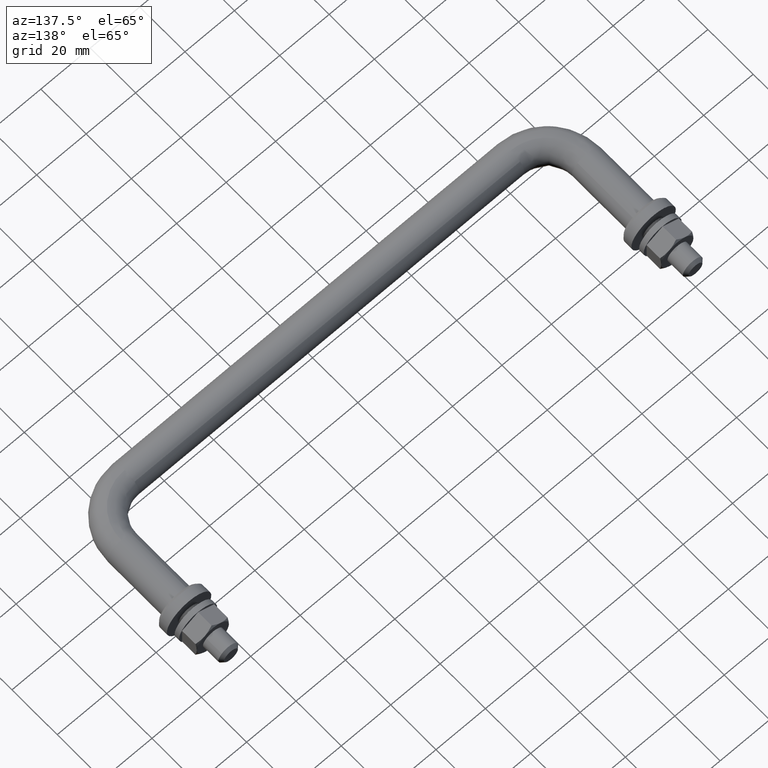
[diagram: clean part render]
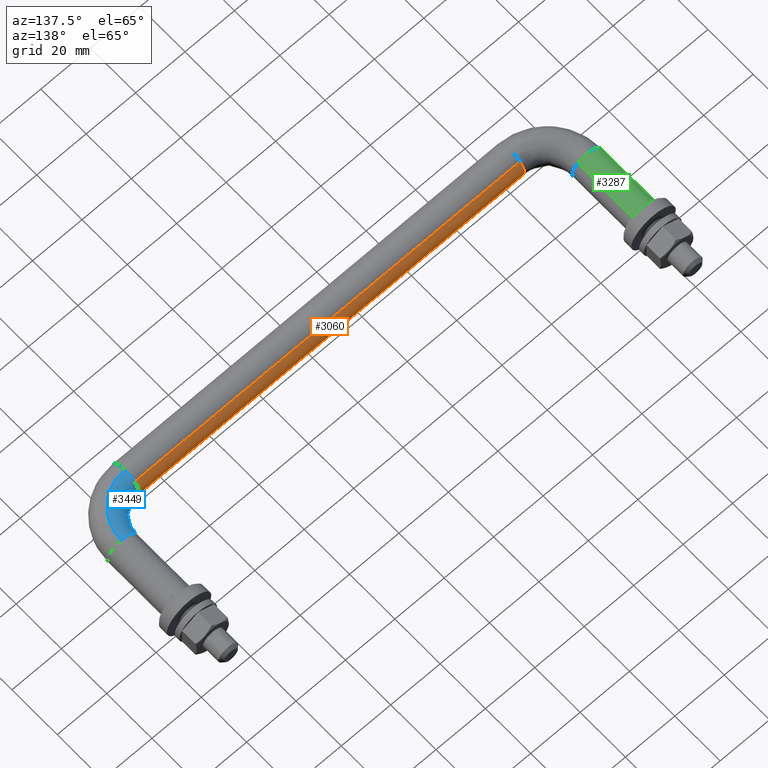
[diagram: same view with three faces highlighted in distinct colors, each labeled with its STEP entity id]
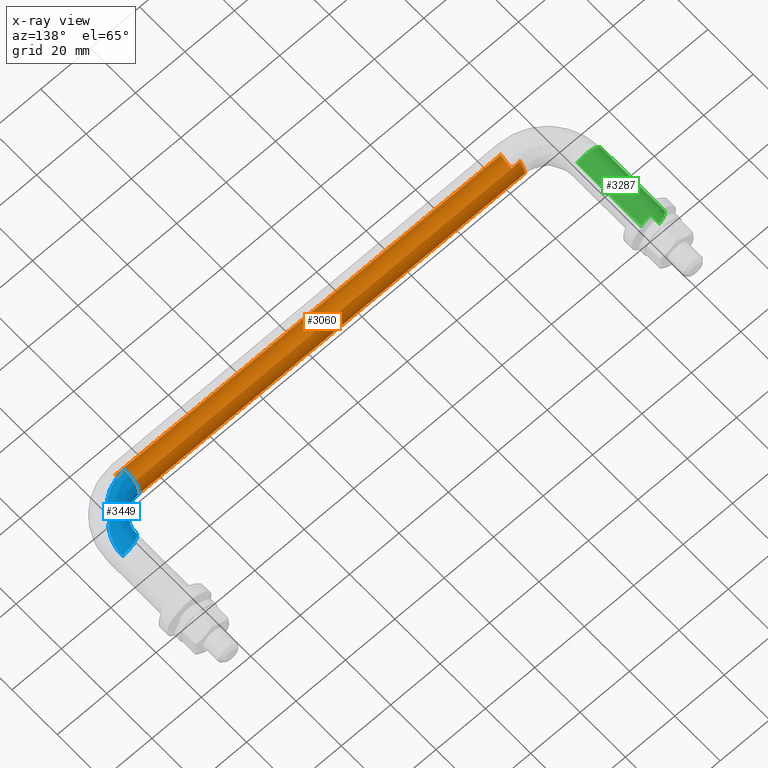
[diagram: x-ray of the same camera — body ghosted, the three highlighted faces saturated]
A machine part, auxiliary view with three faces highlighted in distinct colors.
The next image is the same camera in x-ray (body ghosted, the three faces saturated) — at least one of them is partly hidden behind the body in this view.
Their STEP definitions:

[orange] entity #3060 — the highlighted face is a freeform B-spline surface patch.
#2928=CARTESIAN_POINT('',(12.099999999496248,-48.467994806516181,-4.004625127142923));
#2929=CARTESIAN_POINT('',(12.099999999496248,-48.236023575800246,-4.263437430715380));
#2930=CARTESIAN_POINT('',(12.099999999496250,-47.975720289294422,-4.493734324734011));
#2931=CARTESIAN_POINT('',(12.099999999496250,-43.481985964560408,-8.469454614028436));
#2932=CARTESIAN_POINT('',(12.099999999496250,-39.506265675265993,-3.975720289294424));
#2933=CARTESIAN_POINT('',(12.099999999496250,-35.530545385971564,0.518014035439587));
#2934=CARTESIAN_POINT('',(12.099999999496250,-40.024279710705578,4.493734324734011));
#2935=CARTESIAN_POINT('',(175.997500001134800,-48.467994806516145,-4.004625127142923));
#2936=CARTESIAN_POINT('',(175.997500001134740,-48.236023575800203,-4.263437430715380));
#2937=CARTESIAN_POINT('',(175.997500001134800,-47.975720289294401,-4.493734324734011));
#2938=CARTESIAN_POINT('',(175.997500001134740,-43.481985964560380,-8.469454614028436));
#2939=CARTESIAN_POINT('',(175.997500001134800,-39.506265675265972,-3.975720289294424));
#2940=CARTESIAN_POINT('',(175.997500001134740,-35.530545385971550,0.518014035439587));
#2941=CARTESIAN_POINT('',(175.997500001134800,-40.024279710705557,4.493734324734011));
#2949=(BOUNDED_SURFACE()B_SPLINE_SURFACE(2,1,((#2928,#2935),(#2929,#2936),(#2930,#2937),(#2931,#2938),(#2932,#2939),(#2933,#2940),(#2934,#2941)),.UNSPECIFIED.,.F.,.F.,.U.)B_SPLINE_SURFACE_WITH_KNOTS((3,2,2,3),(2,2),(0.0,0.795290039756343,10.736415536710620,20.677541033664909),(0.0,163.897500001638600),.UNSPECIFIED.)GEOMETRIC_REPRESENTATION_ITEM()RATIONAL_B_SPLINE_SURFACE(((0.956886118190660,0.956886118190660),(0.976568542494924,0.976568542494924),(1.0,1.0),(0.707106781186548,0.707106781186548),(1.0,1.0),(0.707106781186548,0.707106781186548),(1.0,1.0)))REPRESENTATION_ITEM('')SURFACE());
#2950=CARTESIAN_POINT('',(172.000000000030700,-43.924603760731657,-5.999526265223295));
#2951=VERTEX_POINT('',#2950);
#2952=CARTESIAN_POINT('',(172.0,-48.467998580238500,-4.004620916760366));
#2953=VERTEX_POINT('',#2952);
#2954=CARTESIAN_POINT('',(172.000000000030700,-43.924603760731664,-5.999526265223295));
#2955=CARTESIAN_POINT('',(171.999999999999970,-43.962300392080444,-6.0));
#2956=CARTESIAN_POINT('',(172.0,-44.0,-6.0));
#2957=CARTESIAN_POINT('',(172.000000000000090,-46.679560945335538,-6.0));
#2958=CARTESIAN_POINT('',(171.999999999999970,-48.467998580238500,-4.004620916760366));
#2966=(BOUNDED_CURVE()B_SPLINE_CURVE(2,(#2954,#2955,#2956,#2957,#2958),.UNSPECIFIED.,.F.,.U.)B_SPLINE_CURVE_WITH_KNOTS((3,2,3),(0.247784295923591,0.250000000000000,0.383246101980459),.UNSPECIFIED.)CURVE()GEOMETRIC_REPRESENTATION_ITEM()RATIONAL_B_SPLINE_CURVE((0.994854295648300,0.997404141204490,1.0,0.843892481186391,0.854190709346819))REPRESENTATION_ITEM(''));
#2967=EDGE_CURVE('',#2951,#2953,#2966,.T.);
#2968=ORIENTED_EDGE('',*,*,#2967,.T.);
#2969=CARTESIAN_POINT('',(16.0,-48.467998533679001,-4.004620968707411));
#2970=VERTEX_POINT('',#2969);
#2971=CARTESIAN_POINT('',(16.0,-48.467998533679001,-4.004620968707411));
#2972=CARTESIAN_POINT('',(172.0,-48.467998580238500,-4.004620916760366));
#2973=QUASI_UNIFORM_CURVE('',1,(#2971,#2972),.UNSPECIFIED.,.F.,.U.);
#2974=EDGE_CURVE('',#2970,#2953,#2973,.T.);
#2975=ORIENTED_EDGE('',*,*,#2974,.F.);
#2976=CARTESIAN_POINT('',(15.999999999610340,-43.581600490287009,-5.985394043024395));
#2977=VERTEX_POINT('',#2976);
#2978=CARTESIAN_POINT('',(15.999999999610345,-43.581600490287016,-5.985394043024395));
#2979=CARTESIAN_POINT('',(16.0,-43.790545304490436,-5.999999999999999));
#2980=CARTESIAN_POINT('',(16.0,-44.0,-6.0));
#2981=CARTESIAN_POINT('',(16.0,-46.679560903499613,-6.0));
#2982=CARTESIAN_POINT('',(16.000000000000004,-48.467998533679001,-4.004620968707411));
#2990=(BOUNDED_CURVE()B_SPLINE_CURVE(2,(#2978,#2979,#2980,#2981,#2982),.UNSPECIFIED.,.F.,.U.)B_SPLINE_CURVE_WITH_KNOTS((3,2,3),(0.237833686520174,0.250000000000000,0.383246100224852),.UNSPECIFIED.)CURVE()GEOMETRIC_REPRESENTATION_ITEM()RATIONAL_B_SPLINE_CURVE((0.972879876355423,0.985746277135201,1.0,0.843892483243213,0.854190709075447))REPRESENTATION_ITEM(''));
#2991=EDGE_CURVE('',#2977,#2970,#2990,.T.);
#2992=ORIENTED_EDGE('',*,*,#2991,.F.);
#2993=CARTESIAN_POINT('',(16.0,-38.0,0.0));
#2994=VERTEX_POINT('',#2993);
#2995=CARTESIAN_POINT('',(16.0,-38.0,0.0));
#2996=CARTESIAN_POINT('',(15.999999999999998,-37.999999999999993,-5.595221083111795));
#2997=CARTESIAN_POINT('',(15.999999999610345,-43.581600490287016,-5.985394043024395));
#3005=(BOUNDED_CURVE()B_SPLINE_CURVE(2,(#2995,#2996,#2997),.UNSPECIFIED.,.F.,.U.)B_SPLINE_CURVE_WITH_KNOTS((3,3),(0.0,0.237833686520174),.UNSPECIFIED.)CURVE()GEOMETRIC_REPRESENTATION_ITEM()RATIONAL_B_SPLINE_CURVE((1.0,0.721360504051347,0.972879876355423))REPRESENTATION_ITEM(''));
#3006=EDGE_CURVE('',#2994,#2977,#3005,.T.);
#3007=ORIENTED_EDGE('',*,*,#3006,.F.);
#3008=CARTESIAN_POINT('',(16.0,-40.024283299106493,4.493737499477844));
#3009=VERTEX_POINT('',#3008);
#3010=CARTESIAN_POINT('',(16.0,-40.024283299106486,4.493737499477844));
#3011=CARTESIAN_POINT('',(16.000000000000004,-37.999999999999993,2.702805803863420));
#3012=CARTESIAN_POINT('',(16.0,-38.0,0.0));
#3020=(BOUNDED_CURVE()B_SPLINE_CURVE(2,(#3010,#3011,#3012),.UNSPECIFIED.,.F.,.U.)B_SPLINE_CURVE_WITH_KNOTS((3,3),(0.865779767457664,1.0),.UNSPECIFIED.)CURVE()GEOMETRIC_REPRESENTATION_ITEM()RATIONAL_B_SPLINE_CURVE((0.854350179069043,0.842751216243140,1.0))REPRESENTATION_ITEM(''));
#3021=EDGE_CURVE('',#3009,#2994,#3020,.T.);
#3022=ORIENTED_EDGE('',*,*,#3021,.F.);
#3023=CARTESIAN_POINT('',(172.0,-40.024283343943772,4.493737539146402));
#3024=VERTEX_POINT('',#3023);
#3025=CARTESIAN_POINT('',(16.0,-40.024283299106493,4.493737499477844));
#3026=CARTESIAN_POINT('',(172.0,-40.024283343943772,4.493737539146402));
#3027=QUASI_UNIFORM_CURVE('',1,(#3025,#3026),.UNSPECIFIED.,.F.,.U.);
#3028=EDGE_CURVE('',#3009,#3024,#3027,.T.);
#3029=ORIENTED_EDGE('',*,*,#3028,.T.);
#3030=CARTESIAN_POINT('',(172.0,-38.0,0.0));
#3031=VERTEX_POINT('',#3030);
#3032=CARTESIAN_POINT('',(171.999999999999970,-40.024283343943765,4.493737539146402));
#3033=CARTESIAN_POINT('',(172.000000000000030,-37.999999999999993,2.702805839870650));
#3034=CARTESIAN_POINT('',(172.0,-38.0,0.0));
#3042=(BOUNDED_CURVE()B_SPLINE_CURVE(2,(#3032,#3033,#3034),.UNSPECIFIED.,.F.,.U.)B_SPLINE_CURVE_WITH_KNOTS((3,3),(0.865779765950736,1.0),.UNSPECIFIED.)CURVE()GEOMETRIC_REPRESENTATION_ITEM()RATIONAL_B_SPLINE_CURVE((0.854350179329492,0.842751214477665,1.0))REPRESENTATION_ITEM(''));
#3043=EDGE_CURVE('',#3024,#3031,#3042,.T.);
#3044=ORIENTED_EDGE('',*,*,#3043,.T.);
#3045=CARTESIAN_POINT('',(172.0,-38.0,0.0));
#3046=CARTESIAN_POINT('',(171.999999999999940,-37.999999999999993,-5.925071579506664));
#3047=CARTESIAN_POINT('',(172.000000000030750,-43.924603760731657,-5.999526265223295));
#3055=(BOUNDED_CURVE()B_SPLINE_CURVE(2,(#3045,#3046,#3047),.UNSPECIFIED.,.F.,.U.)B_SPLINE_CURVE_WITH_KNOTS((3,3),(0.0,0.247784295923591),.UNSPECIFIED.)CURVE()GEOMETRIC_REPRESENTATION_ITEM()RATIONAL_B_SPLINE_CURVE((1.0,0.709702639982057,0.994854295648301))REPRESENTATION_ITEM(''));
#3056=EDGE_CURVE('',#3031,#2951,#3055,.T.);
#3057=ORIENTED_EDGE('',*,*,#3056,.T.);
#3058=EDGE_LOOP('',(#2968,#2975,#2992,#3007,#3022,#3029,#3044,#3057));
#3059=FACE_OUTER_BOUND('',#3058,.T.);
#3060=ADVANCED_FACE('',(#3059),#2949,.T.);

[blue] entity #3449 — the highlighted face is a freeform B-spline surface patch.
#2734=CARTESIAN_POINT('',(187.924611933301410,-27.999977257682200,-5.999526367917516));
#2735=VERTEX_POINT('',#2734);
#2753=CARTESIAN_POINT('',(182.0,-28.0,0.0));
#2754=VERTEX_POINT('',#2753);
#2755=CARTESIAN_POINT('',(182.0,-28.0,0.0));
#2756=CARTESIAN_POINT('',(182.000000000000030,-27.999988628841098,-5.925079651262719));
#2757=CARTESIAN_POINT('',(187.924611933301410,-27.999977257682197,-5.999526367917516));
#2765=(BOUNDED_CURVE()B_SPLINE_CURVE(2,(#2755,#2756,#2757),.UNSPECIFIED.,.F.,.U.)B_SPLINE_CURVE_WITH_KNOTS((3,3),(0.0,0.247784535489267),.UNSPECIFIED.)CURVE()GEOMETRIC_REPRESENTATION_ITEM()RATIONAL_B_SPLINE_CURVE((1.0,0.709702359313410,0.994854847036074))REPRESENTATION_ITEM(''));
#2766=EDGE_CURVE('',#2754,#2735,#2765,.T.);
#2768=CARTESIAN_POINT('',(184.264912180171190,-28.0,4.695648941111987));
#2769=VERTEX_POINT('',#2768);
#2770=CARTESIAN_POINT('',(184.264912180171190,-28.0,4.695648941111987));
#2771=CARTESIAN_POINT('',(182.000000000000030,-27.999999999999996,2.894056444900479));
#2772=CARTESIAN_POINT('',(182.0,-28.0,0.0));
#2780=(BOUNDED_CURVE()B_SPLINE_CURVE(2,(#2770,#2771,#2772),.UNSPECIFIED.,.F.,.U.)B_SPLINE_CURVE_WITH_KNOTS((3,3),(0.857863877391648,1.0),.UNSPECIFIED.)CURVE()GEOMETRIC_REPRESENTATION_ITEM()RATIONAL_B_SPLINE_CURVE((0.856305618644005,0.833477174158305,1.0))REPRESENTATION_ITEM(''));
#2781=EDGE_CURVE('',#2769,#2754,#2780,.T.);
#2895=CARTESIAN_POINT('',(188.418399515030300,-28.000000001144201,5.985394042652700));
#2896=VERTEX_POINT('',#2895);
#2897=CARTESIAN_POINT('',(188.418399515030250,-28.000000001144205,5.985394042652700));
#2898=CARTESIAN_POINT('',(188.209454700846320,-27.999999999999993,6.0));
#2899=CARTESIAN_POINT('',(188.0,-28.0,6.0));
#2900=CARTESIAN_POINT('',(185.904706199466230,-28.000000000000004,6.000000000000001));
#2901=CARTESIAN_POINT('',(184.264912180171140,-28.0,4.695648941111987));
#2909=(BOUNDED_CURVE()B_SPLINE_CURVE(2,(#2897,#2898,#2899,#2900,#2901),.UNSPECIFIED.,.F.,.U.)B_SPLINE_CURVE_WITH_KNOTS((3,2,3),(0.737833686214604,0.750000000000000,0.857863877391649),.UNSPECIFIED.)CURVE()GEOMETRIC_REPRESENTATION_ITEM()RATIONAL_B_SPLINE_CURVE((0.972879875709116,0.985746276777203,1.0,0.873629607028242,0.856305618644005))REPRESENTATION_ITEM(''));
#2910=EDGE_CURVE('',#2896,#2769,#2909,.T.);
#2950=CARTESIAN_POINT('',(172.000000000030700,-43.924603760731657,-5.999526265223295));
#2951=VERTEX_POINT('',#2950);
#3023=CARTESIAN_POINT('',(172.0,-40.024283343943772,4.493737539146402));
#3024=VERTEX_POINT('',#3023);
#3030=CARTESIAN_POINT('',(172.0,-38.0,0.0));
#3031=VERTEX_POINT('',#3030);
#3032=CARTESIAN_POINT('',(171.999999999999970,-40.024283343943765,4.493737539146402));
#3033=CARTESIAN_POINT('',(172.000000000000030,-37.999999999999993,2.702805839870650));
#3034=CARTESIAN_POINT('',(172.0,-38.0,0.0));
#3042=(BOUNDED_CURVE()B_SPLINE_CURVE(2,(#3032,#3033,#3034),.UNSPECIFIED.,.F.,.U.)B_SPLINE_CURVE_WITH_KNOTS((3,3),(0.865779765950736,1.0),.UNSPECIFIED.)CURVE()GEOMETRIC_REPRESENTATION_ITEM()RATIONAL_B_SPLINE_CURVE((0.854350179329492,0.842751214477665,1.0))REPRESENTATION_ITEM(''));
#3043=EDGE_CURVE('',#3024,#3031,#3042,.T.);
#3045=CARTESIAN_POINT('',(172.0,-38.0,0.0));
#3046=CARTESIAN_POINT('',(171.999999999999940,-37.999999999999993,-5.925071579506664));
#3047=CARTESIAN_POINT('',(172.000000000030750,-43.924603760731657,-5.999526265223295));
#3055=(BOUNDED_CURVE()B_SPLINE_CURVE(2,(#3045,#3046,#3047),.UNSPECIFIED.,.F.,.U.)B_SPLINE_CURVE_WITH_KNOTS((3,3),(0.0,0.247784295923591),.UNSPECIFIED.)CURVE()GEOMETRIC_REPRESENTATION_ITEM()RATIONAL_B_SPLINE_CURVE((1.0,0.709702639982057,0.994854295648301))REPRESENTATION_ITEM(''));
#3056=EDGE_CURVE('',#3031,#2951,#3055,.T.);
#3094=CARTESIAN_POINT('',(172.000000001094800,-44.418399514859161,5.985394042664661));
#3095=VERTEX_POINT('',#3094);
#3109=CARTESIAN_POINT('',(172.000000001094860,-44.418399514859168,5.985394042664661));
#3110=CARTESIAN_POINT('',(172.000000000000030,-44.209454700674584,6.000000000000001));
#3111=CARTESIAN_POINT('',(172.0,-44.0,6.0));
#3112=CARTESIAN_POINT('',(172.000000000000030,-41.726806121522053,6.000000000000001));
#3113=CARTESIAN_POINT('',(171.999999999999970,-40.024283343943765,4.493737539146402));
#3121=(BOUNDED_CURVE()B_SPLINE_CURVE(2,(#3109,#3110,#3111,#3112,#3113),.UNSPECIFIED.,.F.,.U.)B_SPLINE_CURVE_WITH_KNOTS((3,2,3),(0.737833686224437,0.750000000000000,0.865779765950736),.UNSPECIFIED.)CURVE()GEOMETRIC_REPRESENTATION_ITEM()RATIONAL_B_SPLINE_CURVE((0.972879875729914,0.985746276788723,1.0,0.864355566708882,0.854350179329492))REPRESENTATION_ITEM(''));
#3122=EDGE_CURVE('',#3095,#3024,#3121,.T.);
#3386=CARTESIAN_POINT('',(170.858311015844380,-44.378656167966355,5.985394066133807));
#3387=CARTESIAN_POINT('',(189.691463637596770,-45.691438038754328,5.985394066133804));
#3388=CARTESIAN_POINT('',(188.378654515969630,-26.858287316566017,5.985394066133806));
#3389=CARTESIAN_POINT('',(170.870222679992420,-44.207771580152766,5.997368459328783));
#3390=CARTESIAN_POINT('',(189.506882043079800,-45.506856711319521,5.997368459328781));
#3391=CARTESIAN_POINT('',(188.207769945391850,-26.870199227977380,5.997368459328779));
#3392=CARTESIAN_POINT('',(170.882162468940070,-44.036483514307562,5.999526265222895));
#3393=CARTESIAN_POINT('',(189.321864630333690,-45.321839566286258,5.999526265222895));
#3394=CARTESIAN_POINT('',(188.036481896823260,-26.882139264772281,5.999526265222895));
#3395=CARTESIAN_POINT('',(171.299352535549500,-38.051479934072887,6.074922504523009));
#3396=CARTESIAN_POINT('',(182.857141754125050,-38.857126044273798,6.074922504523014));
#3397=CARTESIAN_POINT('',(182.051478920252630,-27.299337991449018,6.074922504523009));
#3398=CARTESIAN_POINT('',(171.304595376518110,-37.976266201821545,0.075396239300117));
#3399=CARTESIAN_POINT('',(182.775899374070920,-38.775883781774226,0.075396239300117));
#3400=CARTESIAN_POINT('',(181.976265195587560,-27.304580941248997,0.075396239300117));
#3401=CARTESIAN_POINT('',(171.309838217486740,-37.901052469570175,-5.924130025922775));
#3402=CARTESIAN_POINT('',(182.694656994016920,-38.694641519274647,-5.924130025922779));
#3403=CARTESIAN_POINT('',(181.901051470922430,-27.309823891048975,-5.924130025922776));
#3404=CARTESIAN_POINT('',(170.892648150877420,-43.886056049804850,-5.999526265222895));
#3405=CARTESIAN_POINT('',(189.159379870225620,-45.159355041287107,-5.999526265222895));
#3406=CARTESIAN_POINT('',(187.886054447493140,-26.892625164372237,-5.999526265222895));
#3414=(BOUNDED_SURFACE()B_SPLINE_SURFACE(2,2,((#3386,#3389,#3392,#3395,#3398,#3401,#3404),(#3387,#3390,#3393,#3396,#3399,#3402,#3405),(#3388,#3391,#3394,#3397,#3400,#3403,#3406)),.UNSPECIFIED.,.F.,.F.,.U.)B_SPLINE_SURFACE_WITH_KNOTS((3,3),(3,2,2,3),(0.0,29.920493368264712),(0.0,0.397644640654330,10.338770137608639,20.279895634562941),.UNSPECIFIED.)GEOMETRIC_REPRESENTATION_ITEM()RATIONAL_B_SPLINE_SURFACE(((0.895729761376907,0.905606519293506,0.916342124834309,0.647951730357230,0.916342124834309,0.647951730357230,0.916342124834309),(0.587799902987867,0.594281274485770,0.601326242921003,0.425201864074870,0.601326242921003,0.425201864074870,0.601326242921003),(0.895730351866127,0.905607116293752,0.916342728911755,0.647952157504489,0.916342728911755,0.647952157504489,0.916342728911755)))REPRESENTATION_ITEM('')SURFACE());
#3415=ORIENTED_EDGE('',*,*,#2910,.T.);
#3416=ORIENTED_EDGE('',*,*,#2781,.T.);
#3417=ORIENTED_EDGE('',*,*,#2766,.T.);
#3418=CARTESIAN_POINT('',(172.000000000030670,-43.924603760731657,-5.999526265223297));
#3419=CARTESIAN_POINT('',(187.924630589315830,-43.924603760648566,-5.999526316570405));
#3420=CARTESIAN_POINT('',(187.924611933301430,-27.999977257682193,-5.999526367917516));
#3428=(BOUNDED_CURVE()B_SPLINE_CURVE(2,(#3418,#3419,#3420),.UNSPECIFIED.,.F.,.U.)B_SPLINE_CURVE_WITH_KNOTS((3,3),(-1.734750791654397,-0.265247724385492),.UNSPECIFIED.)CURVE()GEOMETRIC_REPRESENTATION_ITEM()RATIONAL_B_SPLINE_CURVE((0.889029723575022,0.628638683265943,0.889030249481114))REPRESENTATION_ITEM(''));
#3429=EDGE_CURVE('',#2951,#2735,#3428,.T.);
#3430=ORIENTED_EDGE('',*,*,#3429,.F.);
#3431=ORIENTED_EDGE('',*,*,#3056,.F.);
#3432=ORIENTED_EDGE('',*,*,#3043,.F.);
#3433=ORIENTED_EDGE('',*,*,#3122,.F.);
#3434=CARTESIAN_POINT('',(172.000000001094830,-44.418399514859161,5.985394042664661));
#3435=CARTESIAN_POINT('',(188.418399507164250,-44.418399507263018,5.985394043042593));
#3436=CARTESIAN_POINT('',(188.418399515030250,-28.000000001144198,5.985394042652700));
#3444=(BOUNDED_CURVE()B_SPLINE_CURVE(2,(#3434,#3435,#3436),.UNSPECIFIED.,.F.,.U.)B_SPLINE_CURVE_WITH_KNOTS((3,3),(-1.734750791519822,-0.265249208486429),.UNSPECIFIED.)CURVE()GEOMETRIC_REPRESENTATION_ITEM()RATIONAL_B_SPLINE_CURVE((0.869031711827253,0.614498216582240,0.869031711825088))REPRESENTATION_ITEM(''));
#3445=EDGE_CURVE('',#3095,#2896,#3444,.T.);
#3446=ORIENTED_EDGE('',*,*,#3445,.T.);
#3447=EDGE_LOOP('',(#3415,#3416,#3417,#3430,#3431,#3432,#3433,#3446));
#3448=FACE_OUTER_BOUND('',#3447,.T.);
#3449=ADVANCED_FACE('',(#3448),#3414,.T.);

[green] entity #3287 — the highlighted face is a freeform B-spline surface patch.
#3174=CARTESIAN_POINT('',(3.735087819825715,0.700000000034947,4.695648941114483));
#3175=CARTESIAN_POINT('',(-0.960561121288767,0.700000000034946,8.430736760940198));
#3176=CARTESIAN_POINT('',(-4.695648941114483,0.700000000034946,3.735087819825715));
#3177=CARTESIAN_POINT('',(-8.430736760940198,0.700000000034946,-0.960561121288767));
#3178=CARTESIAN_POINT('',(-3.735087819825715,0.700000000034946,-4.695648941114483));
#3179=CARTESIAN_POINT('',(3.735087819825719,-28.717500001433621,4.695648941114483));
#3180=CARTESIAN_POINT('',(-0.960561121288764,-28.717500001433617,8.430736760940198));
#3181=CARTESIAN_POINT('',(-4.695648941114479,-28.717500001433621,3.735087819825715));
#3182=CARTESIAN_POINT('',(-8.430736760940194,-28.717500001433617,-0.960561121288767));
#3183=CARTESIAN_POINT('',(-3.735087819825712,-28.717500001433621,-4.695648941114483));
#3191=(BOUNDED_SURFACE()B_SPLINE_SURFACE(2,1,((#3174,#3179),(#3175,#3180),(#3176,#3181),(#3177,#3182),(#3178,#3183)),.UNSPECIFIED.,.F.,.F.,.U.)B_SPLINE_SURFACE_WITH_KNOTS((3,2,3),(2,2),(0.0,9.941125496954278,19.882250993908560),(0.0,29.417500001468571),.UNSPECIFIED.)GEOMETRIC_REPRESENTATION_ITEM()RATIONAL_B_SPLINE_SURFACE(((1.0,1.0),(0.707106781186548,0.707106781186548),(1.0,1.0),(0.707106781186548,0.707106781186548),(1.0,1.0)))REPRESENTATION_ITEM('')SURFACE());
#3192=CARTESIAN_POINT('',(-0.075396246629108,-28.000000001397801,5.999526265130792));
#3193=VERTEX_POINT('',#3192);
#3194=CARTESIAN_POINT('',(3.735087819828864,-28.0,4.695648941111983));
#3195=VERTEX_POINT('',#3194);
#3196=CARTESIAN_POINT('',(-0.075396246629108,-28.000000001397797,5.999526265130792));
#3197=CARTESIAN_POINT('',(-0.037699615281203,-27.999999999999996,5.999999999999999));
#3198=CARTESIAN_POINT('',(3.428898E-015,-28.0,6.0));
#3199=CARTESIAN_POINT('',(2.095293800533723,-28.0,6.0));
#3200=CARTESIAN_POINT('',(3.735087819828863,-28.000000000000004,4.695648941111982));
#3208=(BOUNDED_CURVE()B_SPLINE_CURVE(2,(#3196,#3197,#3198,#3199,#3200),.UNSPECIFIED.,.F.,.U.)B_SPLINE_CURVE_WITH_KNOTS((3,2,3),(0.747784295492051,0.750000000000000,0.857863877391647),.UNSPECIFIED.)CURVE()GEOMETRIC_REPRESENTATION_ITEM()RATIONAL_B_SPLINE_CURVE((0.994854294655062,0.997404140698909,1.0,0.873629607028244,0.856305618644006))REPRESENTATION_ITEM(''));
#3209=EDGE_CURVE('',#3193,#3195,#3208,.T.);
#3210=ORIENTED_EDGE('',*,*,#3209,.T.);
#3211=CARTESIAN_POINT('',(3.735087819828823,-5.551115E-017,4.695648941112013));
#3212=VERTEX_POINT('',#3211);
#3213=CARTESIAN_POINT('',(3.735087819828823,-5.551115E-017,4.695648941112013));
#3214=CARTESIAN_POINT('',(3.735087819828864,-28.0,4.695648941111983));
#3215=QUASI_UNIFORM_CURVE('',1,(#3213,#3214),.UNSPECIFIED.,.F.,.U.);
#3216=EDGE_CURVE('',#3212,#3195,#3215,.T.);
#3217=ORIENTED_EDGE('',*,*,#3216,.F.);
#3218=CARTESIAN_POINT('',(-6.0,0.0,0.0));
#3219=VERTEX_POINT('',#3218);
#3220=CARTESIAN_POINT('',(-6.0,0.0,0.0));
#3221=CARTESIAN_POINT('',(-6.0,0.0,6.0));
#3222=CARTESIAN_POINT('',(0.0,0.0,6.0));
#3223=CARTESIAN_POINT('',(2.095293800533710,0.0,6.0));
#3224=CARTESIAN_POINT('',(3.735087819828823,-5.551115E-017,4.695648941112013));
#3232=(BOUNDED_CURVE()B_SPLINE_CURVE(2,(#3220,#3221,#3222,#3223,#3224),.UNSPECIFIED.,.F.,.U.)B_SPLINE_CURVE_WITH_KNOTS((3,2,3),(0.500000000000000,0.750000000000000,0.857863877391646),.UNSPECIFIED.)CURVE()GEOMETRIC_REPRESENTATION_ITEM()RATIONAL_B_SPLINE_CURVE((1.0,0.707106781186548,1.0,0.873629607028244,0.856305618644006))REPRESENTATION_ITEM(''));
#3233=EDGE_CURVE('',#3219,#3212,#3232,.T.);
#3234=ORIENTED_EDGE('',*,*,#3233,.F.);
#3235=CARTESIAN_POINT('',(-3.735087819828822,1.165734E-015,-4.695648941112014));
#3236=VERTEX_POINT('',#3235);
#3237=CARTESIAN_POINT('',(-3.735087819828821,1.165734E-015,-4.695648941112014));
#3238=CARTESIAN_POINT('',(-6.000000000000001,0.0,-2.894056444900532));
#3239=CARTESIAN_POINT('',(-6.0,0.0,0.0));
#3247=(BOUNDED_CURVE()B_SPLINE_CURVE(2,(#3237,#3238,#3239),.UNSPECIFIED.,.F.,.U.)B_SPLINE_CURVE_WITH_KNOTS((3,3),(0.357863877391646,0.500000000000000),.UNSPECIFIED.)CURVE()GEOMETRIC_REPRESENTATION_ITEM()RATIONAL_B_SPLINE_CURVE((0.856305618644006,0.833477174158302,1.0))REPRESENTATION_ITEM(''));
#3248=EDGE_CURVE('',#3236,#3219,#3247,.T.);
#3249=ORIENTED_EDGE('',*,*,#3248,.F.);
#3250=CARTESIAN_POINT('',(-3.735087819828852,-28.0,-4.695648941111986));
#3251=VERTEX_POINT('',#3250);
#3252=CARTESIAN_POINT('',(-3.735087819828822,1.165734E-015,-4.695648941112014));
#3253=CARTESIAN_POINT('',(-3.735087819828852,-28.0,-4.695648941111986));
#3254=QUASI_UNIFORM_CURVE('',1,(#3252,#3253),.UNSPECIFIED.,.F.,.U.);
#3255=EDGE_CURVE('',#3236,#3251,#3254,.T.);
#3256=ORIENTED_EDGE('',*,*,#3255,.T.);
#3257=CARTESIAN_POINT('',(-5.999999999999996,-28.0,0.0));
#3258=VERTEX_POINT('',#3257);
#3259=CARTESIAN_POINT('',(-3.735087819828852,-28.000000000000011,-4.695648941111986));
#3260=CARTESIAN_POINT('',(-5.999999999999996,-28.000000000000004,-2.894056444900477));
#3261=CARTESIAN_POINT('',(-5.999999999999996,-28.0,0.0));
#3269=(BOUNDED_CURVE()B_SPLINE_CURVE(2,(#3259,#3260,#3261),.UNSPECIFIED.,.F.,.U.)B_SPLINE_CURVE_WITH_KNOTS((3,3),(0.357863877391648,0.500000000000000),.UNSPECIFIED.)CURVE()GEOMETRIC_REPRESENTATION_ITEM()RATIONAL_B_SPLINE_CURVE((0.856305618644005,0.833477174158305,1.0))REPRESENTATION_ITEM(''));
#3270=EDGE_CURVE('',#3251,#3258,#3269,.T.);
#3271=ORIENTED_EDGE('',*,*,#3270,.T.);
#3272=CARTESIAN_POINT('',(-5.999999999999996,-28.0,0.0));
#3273=CARTESIAN_POINT('',(-5.999999999999996,-27.999999999999996,5.925071564966636));
#3274=CARTESIAN_POINT('',(-0.075396246629108,-28.000000001397805,5.999526265130792));
#3282=(BOUNDED_CURVE()B_SPLINE_CURVE(2,(#3272,#3273,#3274),.UNSPECIFIED.,.F.,.U.)B_SPLINE_CURVE_WITH_KNOTS((3,3),(0.500000000000000,0.747784295492051),.UNSPECIFIED.)CURVE()GEOMETRIC_REPRESENTATION_ITEM()RATIONAL_B_SPLINE_CURVE((1.0,0.709702640487639,0.994854294655061))REPRESENTATION_ITEM(''));
#3283=EDGE_CURVE('',#3258,#3193,#3282,.T.);
#3284=ORIENTED_EDGE('',*,*,#3283,.T.);
#3285=EDGE_LOOP('',(#3210,#3217,#3234,#3249,#3256,#3271,#3284));
#3286=FACE_OUTER_BOUND('',#3285,.T.);
#3287=ADVANCED_FACE('',(#3286),#3191,.T.);